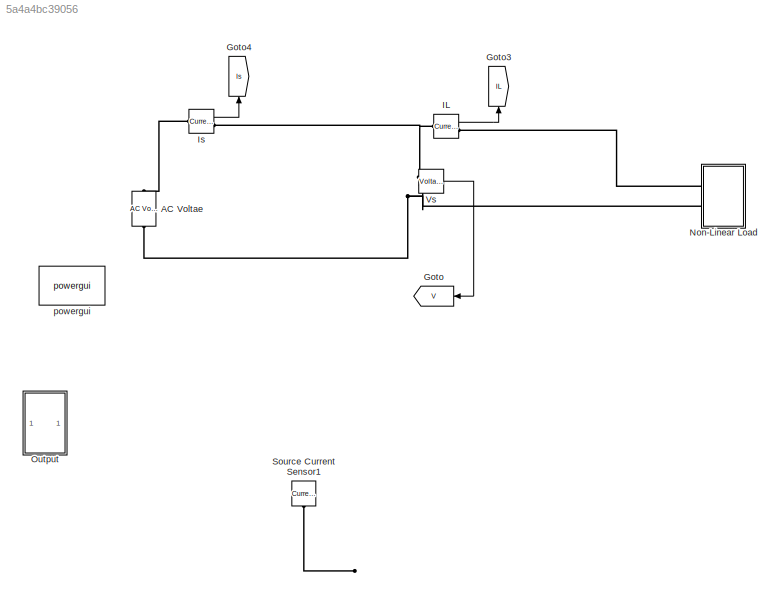
MODEL slx_5a4a4bc39056
KIND model
CONFIG AbsTol = auto
CONFIG EnableMultiTasking = on
CONFIG FixedStep = auto
CONFIG MaxStep = auto
CONFIG MinStep = auto
CONFIG RelTol = 1e-3
CONFIG SampleTimeConstraint = Unconstrained
CONFIG Solver = ode45
CONFIG SolverName = ode45
CONFIG StartTime = 0.0
CONFIG StopTime = .5
BLOCK [Reference] AC Voltae  REF=powerlib/Electrical
Sources/AC Voltage Source
  Ports = [0, 0, 0, 0, 0, 1, 1]
  SourceBlock = powerlib/Electrical\nSources/AC Voltage Source
  SourceProductBaseCode = PS
  SourceProductName = Simscape Power Systems
  SourceType = AC Voltage Source
BLOCK [Goto] Goto
  GotoTag = V
  TagVisibility = global
BLOCK [Goto] Goto3
  GotoTag = IL
  TagVisibility = global
BLOCK [Goto] Goto4
  GotoTag = Is
  TagVisibility = global
BLOCK [Reference] IL  REF=powerlib/Measurements/Current Measurement
  Ports = [0, 1, 0, 0, 0, 1, 1]
  SourceBlock = powerlib/Measurements/Current Measurement
  SourceProductBaseCode = PS
  SourceProductName = Simscape Power Systems
  SourceType = Current Measurement
  UserDataPersistent = on
BLOCK [Reference] Is  REF=powerlib/Measurements/Current Measurement
  Ports = [0, 1, 0, 0, 0, 1, 1]
  SourceBlock = powerlib/Measurements/Current Measurement
  SourceProductBaseCode = PS
  SourceProductName = Simscape Power Systems
  SourceType = Current Measurement
  UserDataPersistent = on
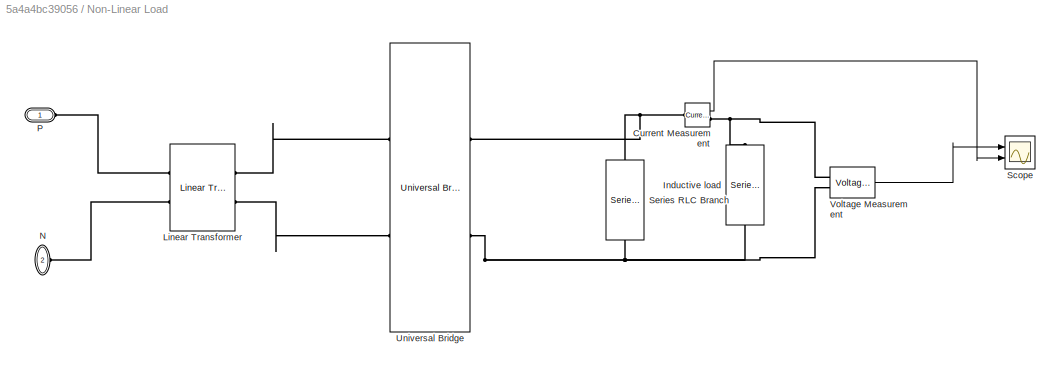
BLOCK [SubSystem] Non-Linear Load
  Ports = [0, 0, 0, 0, 0, 2]
  RequestExecContextInheritance = off
  Variant = off
BLOCK [Reference] Non-Linear Load/Current Measurement  REF=powerlib/Measurements/Current Measurement
  Ports = [0, 1, 0, 0, 0, 1, 1]
  SourceBlock = powerlib/Measurements/Current Measurement
  SourceProductBaseCode = PS
  SourceProductName = Simscape Power Systems
  SourceType = Current Measurement
  UserDataPersistent = on
BLOCK [Reference] Non-Linear Load/Inductive load  REF=powerlib/Elements/Series RLC Branch
  Ports = [0, 0, 0, 0, 0, 1, 1]
  SourceBlock = powerlib/Elements/Series RLC Branch
  SourceProductBaseCode = PS
  SourceProductName = Simscape Power Systems
  SourceType = Series RLC Branch
BLOCK [Reference] Non-Linear Load/Linear Transformer  REF=powerlib/Elements/Linear Transformer
  Ports = [0, 0, 0, 0, 0, 2, 2]
  SourceBlock = powerlib/Elements/Linear Transformer
  SourceProductBaseCode = PS
  SourceProductName = Simscape Power Systems
  SourceType = Linear Transformer
BLOCK [PMIOPort] Non-Linear Load/N
  Port = 2
  Side = Left
BLOCK [PMIOPort] Non-Linear Load/P
  Port = 1
  Side = Left
BLOCK [Scope] Non-Linear Load/Scope
  NumInputPorts = 2
  Ports = [2]
  ScopeSpecificationString = Simulink.scopes.TimeScopeBlockCfg('CurrentConfiguration', extmgr.ConfigurationSet(extmgr.Configuration('Core','General UI',true),extmgr.Configuration('Core','Source UI',true),extmgr.Configuration('Sources','WiredSimulink',true,'DataLoggingVariableName','ScopeData1'),extmgr.Configuration('Visuals','Time Domain',true,'SerializedDisplays',{struct('MinYLimReal','-8.83744','MaxYLimReal','79.53692','YLa...<+2027ch>
BLOCK [Reference] Non-Linear Load/Series RLC Branch  REF=powerlib/Elements/Series RLC Branch
  Ports = [0, 0, 0, 0, 0, 1, 1]
  SourceBlock = powerlib/Elements/Series RLC Branch
  SourceProductBaseCode = PS
  SourceProductName = Simscape Power Systems
  SourceType = Series RLC Branch
BLOCK [Reference] Non-Linear Load/Universal Bridge  REF=powerlib/Power
Electronics/Universal Bridge
  Ports = [0, 0, 0, 0, 0, 2, 2]
  SourceBlock = powerlib/Power\nElectronics/Universal Bridge
  SourceProductBaseCode = PS
  SourceProductName = Simscape Power Systems
  SourceType = Universal Bridge
BLOCK [Reference] Non-Linear Load/Voltage Measurement  REF=powerlib/Measurements/Voltage Measurement
  Ports = [0, 1, 0, 0, 0, 2]
  SourceBlock = powerlib/Measurements/Voltage Measurement
  SourceProductBaseCode = PS
  SourceProductName = Simscape Power Systems
  SourceType = Voltage Measurement
  UserDataPersistent = on
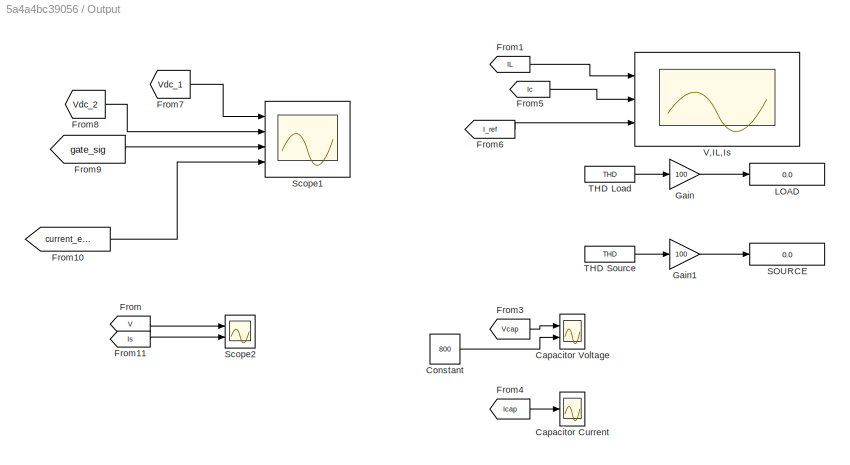
BLOCK [SubSystem] Output
  Ports = []
  RequestExecContextInheritance = off
  Variant = off
BLOCK [Scope] Output/Capacitor Current
  NumInputPorts = 1
  Ports = [1]
  ScopeSpecificationString = Simulink.scopes.TimeScopeBlockCfg('CurrentConfiguration', extmgr.ConfigurationSet(extmgr.Configuration('Core','General UI',true),extmgr.Configuration('Core','Source UI',true),extmgr.Configuration('Sources','WiredSimulink',true,'DataLoggingVariableName','ScopeData2','DataLoggingMaxPoints','50000'),extmgr.Configuration('Visuals','Time Domain',true,'SerializedDisplays',{struct('MinYLimReal','-12.0384...<+1500ch>
BLOCK [Scope] Output/Capacitor Voltage
  NumInputPorts = 2
  Ports = [2]
  ScopeSpecificationString = Simulink.scopes.TimeScopeBlockCfg('CurrentConfiguration', extmgr.ConfigurationSet(extmgr.Configuration('Core','General UI',true),extmgr.Configuration('Core','Source UI',true),extmgr.Configuration('Sources','WiredSimulink',true,'DataLoggingVariableName','ScopeData1','DataLoggingMaxPoints','50000'),extmgr.Configuration('Visuals','Time Domain',true,'SerializedDisplays',{struct('MinYLimReal','798.2018...<+1509ch>
BLOCK [Constant] Output/Constant
  Value = 800
BLOCK [From] Output/From
  GotoTag = V
  TagVisibility = global
BLOCK [From] Output/From1
  GotoTag = IL
  TagVisibility = global
BLOCK [From] Output/From10
  GotoTag = current_error
BLOCK [From] Output/From11
  GotoTag = Is
  TagVisibility = global
BLOCK [From] Output/From3
  GotoTag = Vcap
BLOCK [From] Output/From4
  GotoTag = Icap
BLOCK [From] Output/From5
  GotoTag = Ic
BLOCK [From] Output/From6
  GotoTag = I_ref
BLOCK [From] Output/From7
  GotoTag = Vdc_1
BLOCK [From] Output/From8
  GotoTag = Vdc_2
BLOCK [From] Output/From9
  GotoTag = gate_sig
BLOCK [Gain] Output/Gain
  Gain = 100
  OutDataTypeStr = Inherit: Inherit via internal rule
  ParamDataTypeStr = Inherit: Inherit via internal rule
  SaturateOnIntegerOverflow = off
BLOCK [Gain] Output/Gain1
  Gain = 100
  OutDataTypeStr = Inherit: Inherit via internal rule
  ParamDataTypeStr = Inherit: Inherit via internal rule
  SaturateOnIntegerOverflow = off
BLOCK [Display] Output/LOAD
  Decimation = 1
  Ports = [1]
BLOCK [Display] Output/SOURCE
  Decimation = 1
  Ports = [1]
BLOCK [Scope] Output/Scope1
  NumInputPorts = 4
  Ports = [4]
  ScopeSpecificationString = Simulink.scopes.TimeScopeBlockCfg('CurrentConfiguration', extmgr.ConfigurationSet(extmgr.Configuration('Core','General UI',true),extmgr.Configuration('Core','Source UI',true),extmgr.Configuration('Sources','WiredSimulink',true,'DataLoggingVariableName','ScopeData1'),extmgr.Configuration('Visuals','Time Domain',true,'SerializedDisplays',{struct('MinYLimReal','352.47188','MaxYLimReal','793.61682','Y...<+3490ch>
BLOCK [Scope] Output/Scope2
  NumInputPorts = 2
  Ports = [2]
  ScopeSpecificationString = Simulink.scopes.TimeScopeBlockCfg('CurrentConfiguration', extmgr.ConfigurationSet(extmgr.Configuration('Core','General UI',true),extmgr.Configuration('Core','Source UI',true),extmgr.Configuration('Sources','WiredSimulink',true,'DataLoggingVariableName','ScopeData3','DataLogging',true,'DataLoggingSaveFormat','StructureWithTime'),extmgr.Configuration('Visuals','Time Domain',true,'SerializedDisplays'...<+2102ch>
BLOCK [Reference] Output/THD Load  REF=powerlib_meascontrol/Measurements/THD
  Ports = [1, 1]
  SourceBlock = powerlib_meascontrol/Measurements/THD
  SourceProductBaseCode = PS
  SourceProductName = Simscape Power Systems
  SourceType = THD
BLOCK [Reference] Output/THD Source  REF=powerlib_meascontrol/Measurements/THD
  Ports = [1, 1]
  SourceBlock = powerlib_meascontrol/Measurements/THD
  SourceProductBaseCode = PS
  SourceProductName = Simscape Power Systems
  SourceType = THD
BLOCK [Scope] Output/V,IL,Is
  NumInputPorts = 3
  Ports = [3]
  ScopeSpecificationString = Simulink.scopes.TimeScopeBlockCfg('CurrentConfiguration', extmgr.ConfigurationSet(extmgr.Configuration('Core','General UI',true),extmgr.Configuration('Core','Source UI',true),extmgr.Configuration('Sources','WiredSimulink',true,'DataLoggingMaxPoints','50000'),extmgr.Configuration('Visuals','Time Domain',true,'SerializedDisplays',{struct('MinYLimReal','-5.27274','MaxYLimReal','5.27274','YLabelReal',...<+2765ch>
BLOCK [Reference] Source Current Sensor1  REF=powerlib/Measurements/Current Measurement
  Ports = [0, 1, 0, 0, 0, 1, 1]
  SourceBlock = powerlib/Measurements/Current Measurement
  SourceProductBaseCode = PS
  SourceProductName = Simscape Power Systems
  SourceType = Current Measurement
  UserDataPersistent = on
BLOCK [Reference] Vs  REF=powerlib/Measurements/Voltage Measurement
  Ports = [0, 1, 0, 0, 0, 2]
  SourceBlock = powerlib/Measurements/Voltage Measurement
  SourceProductBaseCode = PS
  SourceProductName = Simscape Power Systems
  SourceType = Voltage Measurement
  UserDataPersistent = on
BLOCK [Reference] powergui  REF=powerlib/powergui
  Ports = []
  Priority = 1
  SourceBlock = powerlib/powergui
  SourceProductBaseCode = PS
  SourceProductName = Simscape Power Systems
  SourceType = PSB option menu block
LINE IL:1 -> Goto3:1
LINE Is:1 -> Goto4:1
LINE Non-Linear Load/Current Measurement:1 -> Non-Linear Load/Scope:2
LINE Non-Linear Load/Voltage Measurement:1 -> Non-Linear Load/Scope:1
LINE Output/Constant:1 -> Output/Capacitor Voltage:2
LINE Output/From10:1 -> Output/Scope1:4
LINE Output/From11:1 -> Output/Scope2:2
LINE Output/From1:1 -> Output/V,IL,Is:1
LINE Output/From3:1 -> Output/Capacitor Voltage:1
LINE Output/From4:1 -> Output/Capacitor Current:1
LINE Output/From5:1 -> Output/V,IL,Is:2
LINE Output/From6:1 -> Output/V,IL,Is:3
LINE Output/From7:1 -> Output/Scope1:1
LINE Output/From8:1 -> Output/Scope1:2
LINE Output/From9:1 -> Output/Scope1:3
LINE Output/From:1 -> Output/Scope2:1
LINE Output/Gain1:1 -> Output/SOURCE:1
LINE Output/Gain:1 -> Output/LOAD:1
LINE Output/THD Load:1 -> Output/Gain:1
LINE Output/THD Source:1 -> Output/Gain1:1
LINE Vs:1 -> Goto:1
PNET net1: AC Voltae:LConn1 -- Non-Linear Load:LConn2 -- Vs:LConn2
PLINE AC Voltae:RConn1 -- Is:LConn1
PNET net2: IL:LConn1 -- Is:RConn1 -- Vs:LConn1
PLINE IL:RConn1 -- Non-Linear Load:LConn1
PNET net3: Non-Linear Load/Current Measurement:LConn1 -- Non-Linear Load/Series RLC Branch:LConn1 -- Non-Linear Load/Universal Bridge:RConn1
PNET net4: Non-Linear Load/Current Measurement:RConn1 -- Non-Linear Load/Inductive load:LConn1 -- Non-Linear Load/Voltage Measurement:LConn1
PNET net5: Non-Linear Load/Inductive load:RConn1 -- Non-Linear Load/Series RLC Branch:RConn1 -- Non-Linear Load/Universal Bridge:RConn2 -- Non-Linear Load/Voltage Measurement:LConn2
PLINE Non-Linear Load/Linear Transformer:LConn1 -- Non-Linear Load/P:RConn1
PLINE Non-Linear Load/Linear Transformer:LConn2 -- Non-Linear Load/N:RConn1
PLINE Non-Linear Load/Linear Transformer:RConn1 -- Non-Linear Load/Universal Bridge:LConn1
PLINE Non-Linear Load/Linear Transformer:RConn2 -- Non-Linear Load/Universal Bridge:LConn2
note: PNET lines group multi-terminal physical nets as a canonical sorted terminal list (undirected conserving connections); 2-terminal nets keep the pairwise PLINE form
